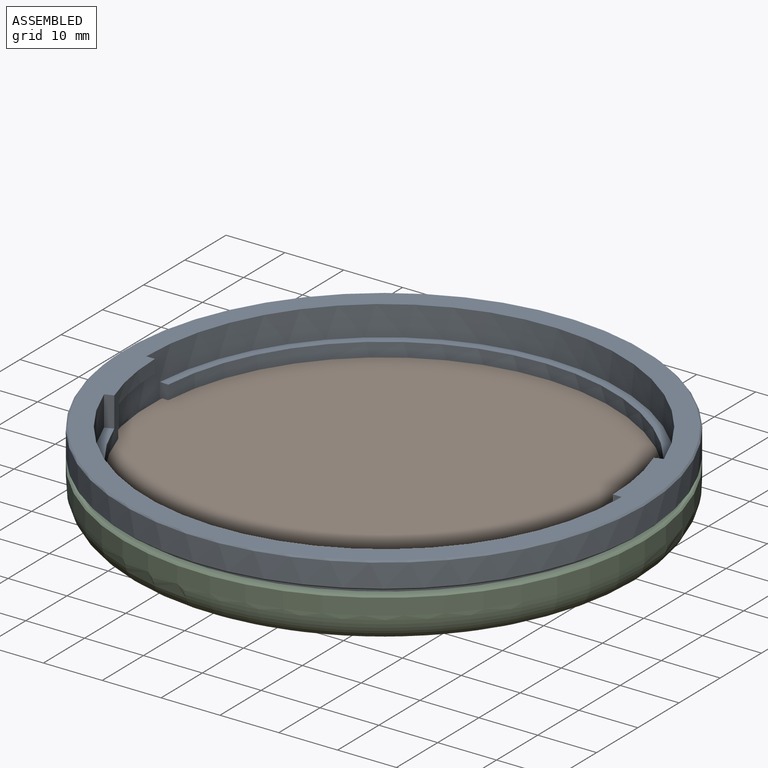
[diagram: assembled view]
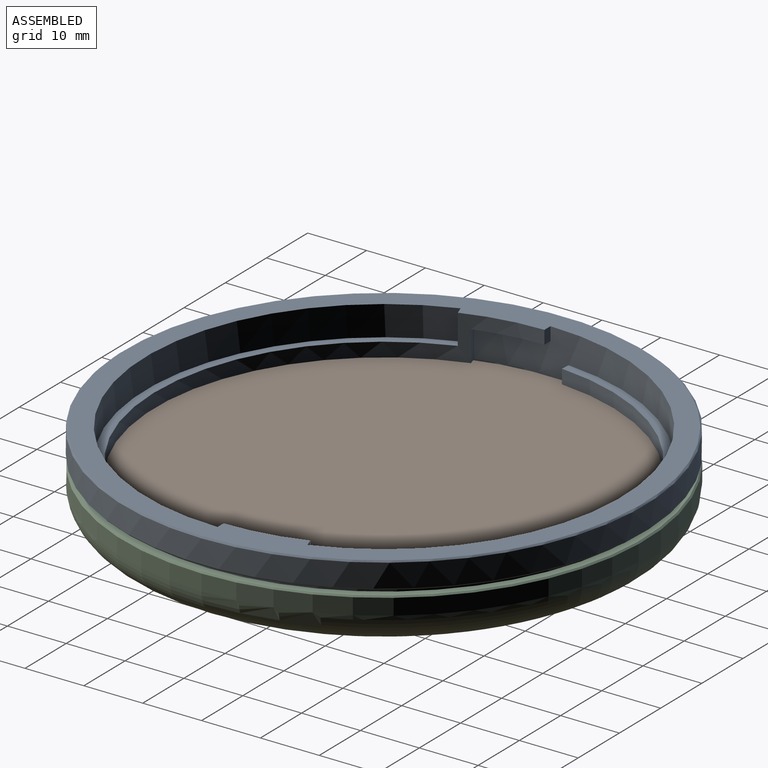
[diagram: assembled view, second angle]
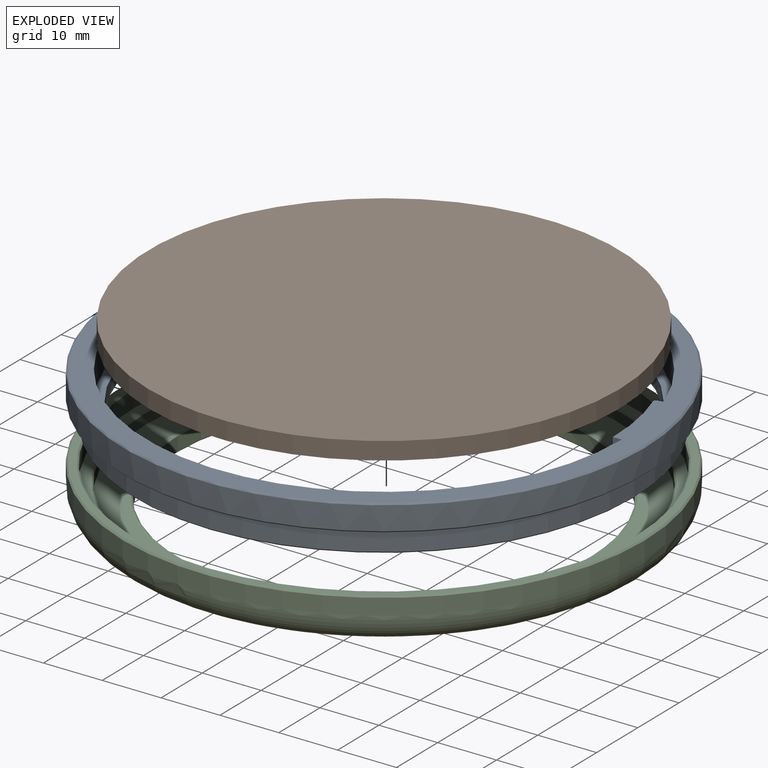
[diagram: exploded view]
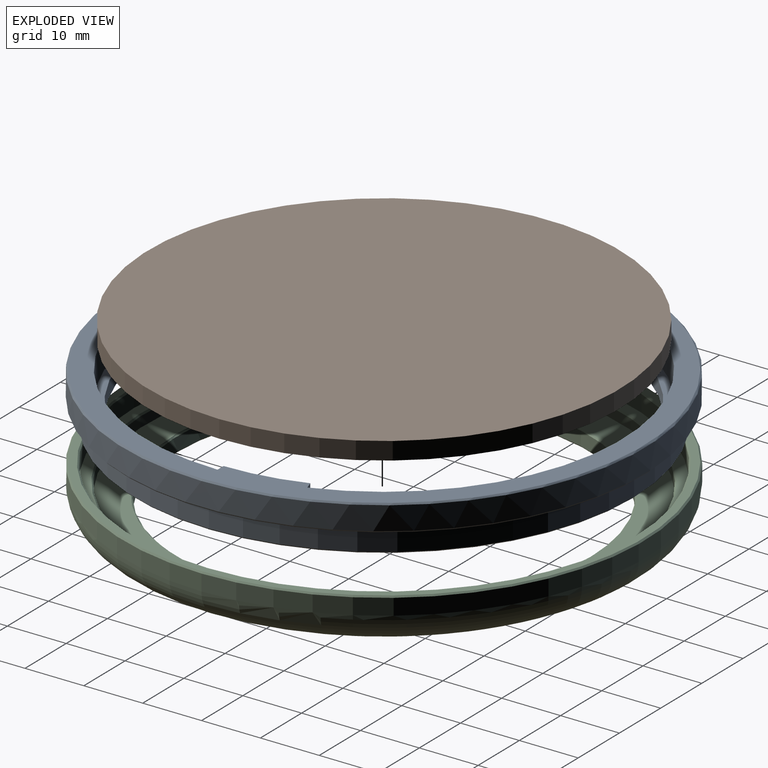
[diagram: exploded view, second angle]
ASSEMBLY  parts=3 mates=2
PART A: 26 faces, bbox 88.6x88.6x8.5 mm
  f0: cylinder r=44.3mm len=88.6mm, axis (0,0,-1), area 1113.4mm2, adj f23,f24
  f1: plane 81x81mm, normal (0,0,-1), area 350.9mm2, adj f2,f5,f10,f12,f13,f14,f16,f17
  f2: cylinder r=38.93mm len=77.73mm, axis (0,0,-1), area 294.7mm2, adj f1,f4,f6,f8,f11,f14,f15,f16
  f3: plane 2.3x1.48mm, normal (0,1,0), area 3.4mm2, adj f5,f8,f12,f18
  f4: plane 78.31x37.35mm, normal (0,0,1), area 159.1mm2, adj f2,f11,f12,f16
  f5: cylinder r=38.93mm len=77.8mm, axis (0,0,-1), area 297.3mm2, adj f1,f3,f7,f8,f9,f13,f17,f18
  f6: plane 2.3x1.48mm, normal (0,-1,0), area 3.4mm2, adj f2,f8,f10,f15
  f7: plane 78.38x38.44mm, normal (0,0,1), area 160.7mm2, adj f5,f9,f10,f13
  f8: plane 88.1x88.1mm, normal (0,0,1), area 1008.6mm2, adj f2,f3,f5,f6,f9,f10,f11,f12
  f9: plane 5.1x1.39mm, normal (0.34,-0.94,0), area 7.5mm2, adj f5,f7,f8,f10
  f10: cylinder r=40.4mm len=78.44mm, axis (0,0,1), area 643.3mm2, adj f1,f6,f7,f8,f9,f13,f14,f15
  f11: plane 5.1x1.39mm, normal (-0.34,0.94,0), area 7.5mm2, adj f2,f4,f8,f12
  f12: cylinder r=40.4mm len=78.44mm, axis (0,0,1), area 646mm2, adj f1,f3,f4,f8,f11,f16,f17,f18
  f13: plane 2.4x1.47mm, normal (0.05,1,0), area 3.5mm2, adj f1,f5,f7,f10
  f14: plane 5.2x1.41mm, normal (0.29,-0.96,0), area 7.7mm2, adj f1,f2,f10,f15
  f15: plane 11.74x3.16mm, normal (0,0,-1), area 17.3mm2, adj f2,f6,f10,f14
  f16: plane 2.4x1.47mm, normal (-0.08,-1,0), area 3.5mm2, adj f1,f2,f4,f12
  f17: plane 5.2x1.41mm, normal (-0.29,0.96,0), area 7.7mm2, adj f1,f5,f12,f18
  f18: plane 11.74x3.16mm, normal (0,0,-1), area 17.3mm2, adj f3,f5,f12,f17
  f19: cylinder r=40.5mm len=81mm, axis (0,0,1), area 254.5mm2, adj f1,f21
  f20: cylinder r=42.5mm len=85mm, axis (0,0,1), area 1001.4mm2, adj f22,f25
  f21: plane 84.5x84.5mm, normal (0,0,-1), area 454.9mm2, adj f19,f25
  f22: plane 88.1x88.1mm, normal (0,0,-1), area 421.5mm2, adj f20,f24
  f23: cone r=44.05mm half-angle=45deg, axis (0,0,-1), area 98.1mm2, adj f0,f8
  f24: cone r=44.3mm half-angle=45deg, axis (0,0,1), area 98.1mm2, adj f0,f22
  f25: cone r=42.25mm half-angle=45deg, axis (0,0,1), area 94.1mm2, adj f20,f21
PART B: 3 faces, bbox 80x80x3 mm
  f0: cylinder r=40mm len=80mm, axis (0,0,-1), area 754mm2, adj f1,f2
  f1: plane 80x80mm, normal (0,0,1), area 5026.5mm2, adj f0
  f2: plane 80x80mm, normal (0,0,-1), area 5026.5mm2, adj f0
PART C: 14 faces, bbox 95.9x95.9x8 mm
  f0: cylinder r=40.5mm len=81mm, axis (0,0,-1), area 445.3mm2, adj f6,f9
  f1: cylinder r=35mm len=70mm, axis (0,0,-1), area 527.8mm2, adj f12,f13
  f2: cylinder r=44.3mm len=88.6mm, axis (0,0,-1), area 765.4mm2, adj f5,f11
  f3: plane 78.6x78.6mm, normal (0,0,1), area 948.5mm2, adj f5,f12
  f4: plane 88.1x88.1mm, normal (0,0,-1), area 354.5mm2, adj f10,f11
  f5: torus R=39.3mm, axis (0,0,1), area 2096.5mm2, adj f2,f3
  f6: plane 81x81mm, normal (0,0,-1), area 1249.4mm2, adj f0,f13
  f7: plane 85x85mm, normal (0,0,-1), area 457.7mm2, adj f8,f9
  f8: cylinder r=42.5mm len=85mm, axis (0,0,-1), area 761.1mm2, adj f7,f10
  f9: cone r=40.75mm half-angle=45deg, axis (0,0,-1), area 90.2mm2, adj f0,f7
  f10: cone r=42.5mm half-angle=45deg, axis (0,0,-1), area 94.7mm2, adj f4,f8
  f11: cone r=44.3mm half-angle=45deg, axis (0,0,1), area 98.1mm2, adj f2,f4
  f12: cone r=35mm half-angle=45deg, axis (0,0,1), area 78mm2, adj f1,f3
  f13: cone r=35mm half-angle=45deg, axis (0,0,-1), area 78mm2, adj f1,f6
PLACE A t=(3,-5.9,-15.2)mm fixed
PLACE B t=(3,-5.9,-18.2)mm
PLACE C rot(axis=(1,0,0),180deg) t=(3,-5.9,-13.1)mm
MATE cylindrical A.f10 <-> C.f8  axis (0,0,-1) through (3,-5.9,-16.2)mm
MATE fastened C.f8 <-> B.f0  axis (0,0,1) through (3,-5.9,-18.2)mm
